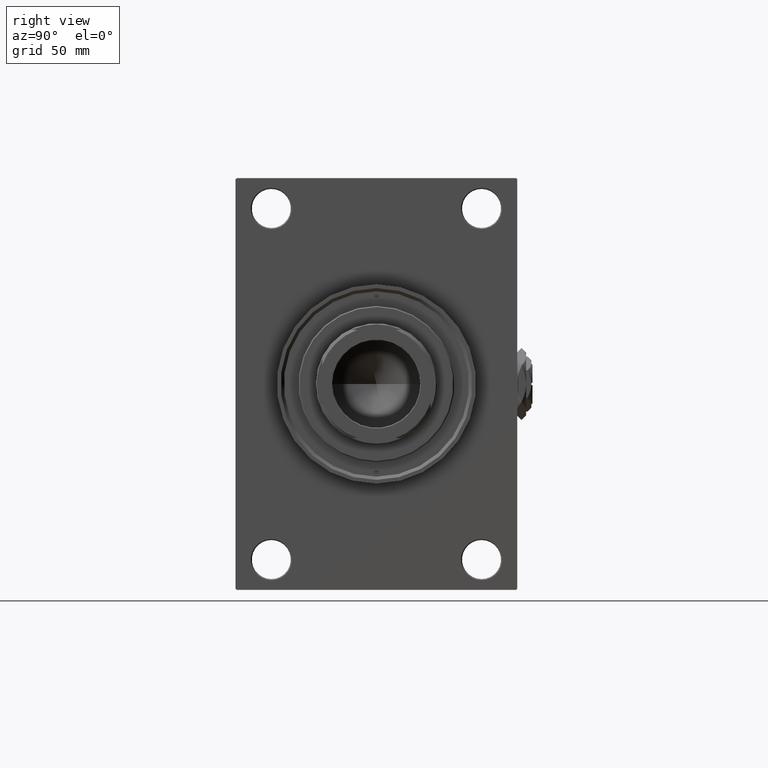
[diagram: clean part render]
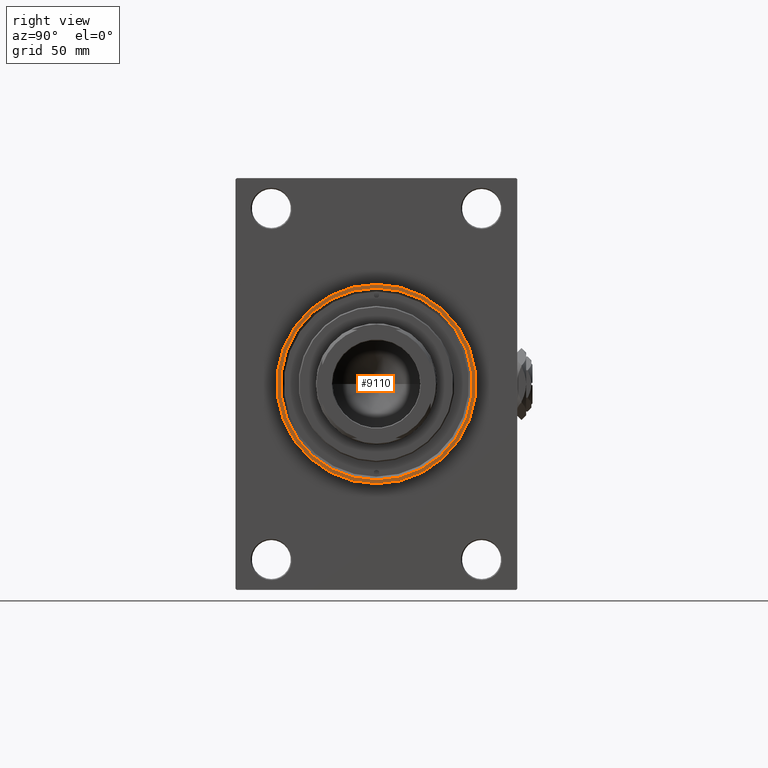
[diagram: same view with one face highlighted and labeled with its STEP entity id]
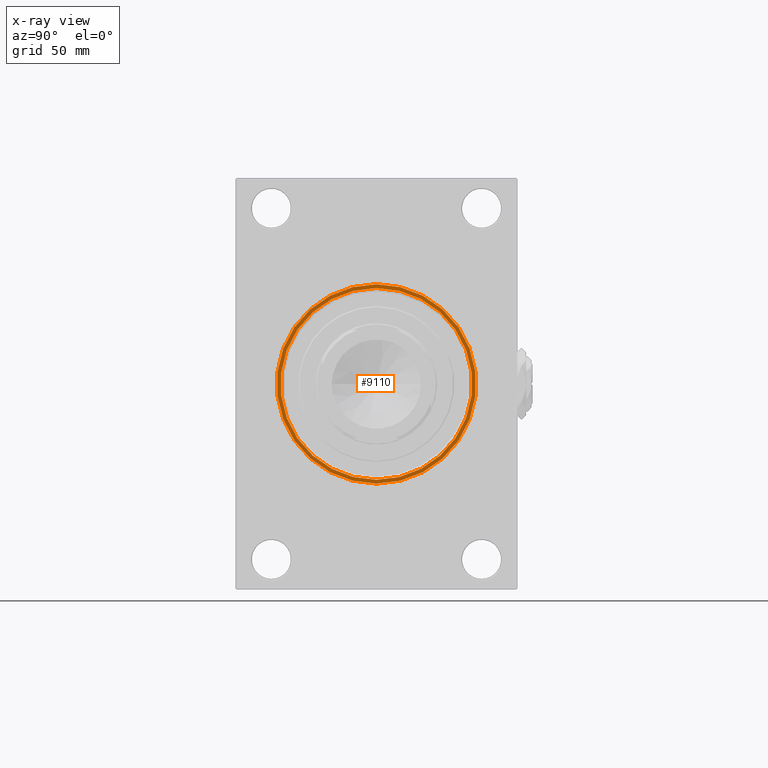
[diagram: x-ray of the same camera — body ghosted, the highlighted face saturated]
A machine part, right view. The second image highlights one B-rep face of the part: STEP entity #9110.
The next image is the same camera in x-ray: the body ghosted, the highlighted face saturated — about 0% of this face is hidden behind the body in this view.
In plain terms, the highlighted planar face has unit normal (1, 0, 0).
Its self-contained STEP definition (entity closure, byte-faithful):
#159 = DIRECTION ( 'NONE',  ( 0.000000000000000000, 0.000000000000000000, -1.000000000000000000 ) ) ;
#2637 = CARTESIAN_POINT ( 'NONE',  ( 187.9999999999999716, 0.000000000000000000, 0.000000000000000000 ) ) ;
#7166 = AXIS2_PLACEMENT_3D ( 'NONE', #50122, #23279, #12380 ) ;
#7405 = CARTESIAN_POINT ( 'NONE',  ( 187.9999999999999716, 5.419062086227035828E-15, 44.24999999999998579 ) ) ;
#9110 = ADVANCED_FACE ( 'NONE', ( #26758, #46487 ), #30065, .T. ) ;
#9402 = DIRECTION ( 'NONE',  ( 0.000000000000000000, 0.000000000000000000, -1.000000000000000000 ) ) ;
#10973 = ORIENTED_EDGE ( 'NONE', *, *, #33515, .T. ) ;
#12380 = DIRECTION ( 'NONE',  ( 0.000000000000000000, 0.000000000000000000, -1.000000000000000000 ) ) ;
#13212 = DIRECTION ( 'NONE',  ( 1.000000000000000000, 0.000000000000000000, 0.000000000000000000 ) ) ;
#15125 = EDGE_LOOP ( 'NONE', ( #10973, #30088 ) ) ;
#15612 = VERTEX_POINT ( 'NONE', #7405 ) ;
#16729 = ORIENTED_EDGE ( 'NONE', *, *, #20257, .T. ) ;
#17840 = DIRECTION ( 'NONE',  ( 0.000000000000000000, 0.000000000000000000, -1.000000000000000000 ) ) ;
#18130 = EDGE_CURVE ( 'NONE', #24998, #15612, #24075, .T. ) ;
#20257 = EDGE_CURVE ( 'NONE', #15612, #24998, #45160, .T. ) ;
#21813 = EDGE_CURVE ( 'NONE', #47544, #35110, #41947, .T. ) ;
#23204 = CARTESIAN_POINT ( 'NONE',  ( 187.9999999999999716, 0.000000000000000000, 0.000000000000000000 ) ) ;
#23279 = DIRECTION ( 'NONE',  ( 1.000000000000000000, 0.000000000000000000, 0.000000000000000000 ) ) ;
#24075 = CIRCLE ( 'NONE', #36234, 44.24999999999998579 ) ;
#24866 = CARTESIAN_POINT ( 'NONE',  ( 187.9999999999999716, 0.000000000000000000, 0.000000000000000000 ) ) ;
#24998 = VERTEX_POINT ( 'NONE', #49453 ) ;
#26319 = AXIS2_PLACEMENT_3D ( 'NONE', #24866, #13212, #9402 ) ;
#26758 = FACE_BOUND ( 'NONE', #49798, .T. ) ;
#30065 = PLANE ( 'NONE',  #43180 ) ;
#30088 = ORIENTED_EDGE ( 'NONE', *, *, #21813, .T. ) ;
#33353 = CARTESIAN_POINT ( 'NONE',  ( 187.9999999999999716, 0.000000000000000000, 46.00000000000000000 ) ) ;
#33515 = EDGE_CURVE ( 'NONE', #35110, #47544, #34380, .T. ) ;
#34088 = DIRECTION ( 'NONE',  ( -1.000000000000000000, -0.000000000000000000, -0.000000000000000000 ) ) ;
#34380 = CIRCLE ( 'NONE', #26319, 46.00000000000000000 ) ;
#35110 = VERTEX_POINT ( 'NONE', #33353 ) ;
#36234 = AXIS2_PLACEMENT_3D ( 'NONE', #37869, #34088, #49506 ) ;
#37869 = CARTESIAN_POINT ( 'NONE',  ( 187.9999999999999716, 0.000000000000000000, 0.000000000000000000 ) ) ;
#38148 = DIRECTION ( 'NONE',  ( 1.000000000000000000, 0.000000000000000000, 0.000000000000000000 ) ) ;
#40057 = ORIENTED_EDGE ( 'NONE', *, *, #18130, .T. ) ;
#40870 = DIRECTION ( 'NONE',  ( -1.000000000000000000, -0.000000000000000000, -0.000000000000000000 ) ) ;
#41947 = CIRCLE ( 'NONE', #7166, 46.00000000000000000 ) ;
#43180 = AXIS2_PLACEMENT_3D ( 'NONE', #23204, #38148, #159 ) ;
#44331 = AXIS2_PLACEMENT_3D ( 'NONE', #2637, #40870, #17840 ) ;
#44628 = CARTESIAN_POINT ( 'NONE',  ( 187.9999999999999716, 5.633375276077824704E-15, -46.00000000000000000 ) ) ;
#45160 = CIRCLE ( 'NONE', #44331, 44.24999999999998579 ) ;
#46487 = FACE_OUTER_BOUND ( 'NONE', #15125, .T. ) ;
#47544 = VERTEX_POINT ( 'NONE', #44628 ) ;
#49453 = CARTESIAN_POINT ( 'NONE',  ( 187.9999999999999716, 0.000000000000000000, -44.24999999999998579 ) ) ;
#49506 = DIRECTION ( 'NONE',  ( 0.000000000000000000, 0.000000000000000000, -1.000000000000000000 ) ) ;
#49798 = EDGE_LOOP ( 'NONE', ( #40057, #16729 ) ) ;
#50122 = CARTESIAN_POINT ( 'NONE',  ( 187.9999999999999716, 0.000000000000000000, 0.000000000000000000 ) ) ;